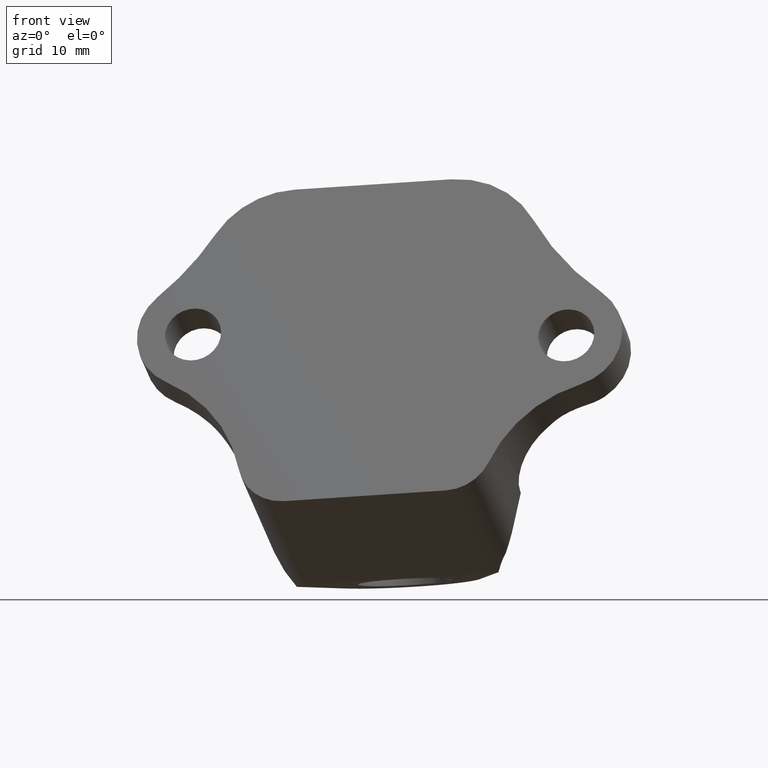
[diagram: clean part render]
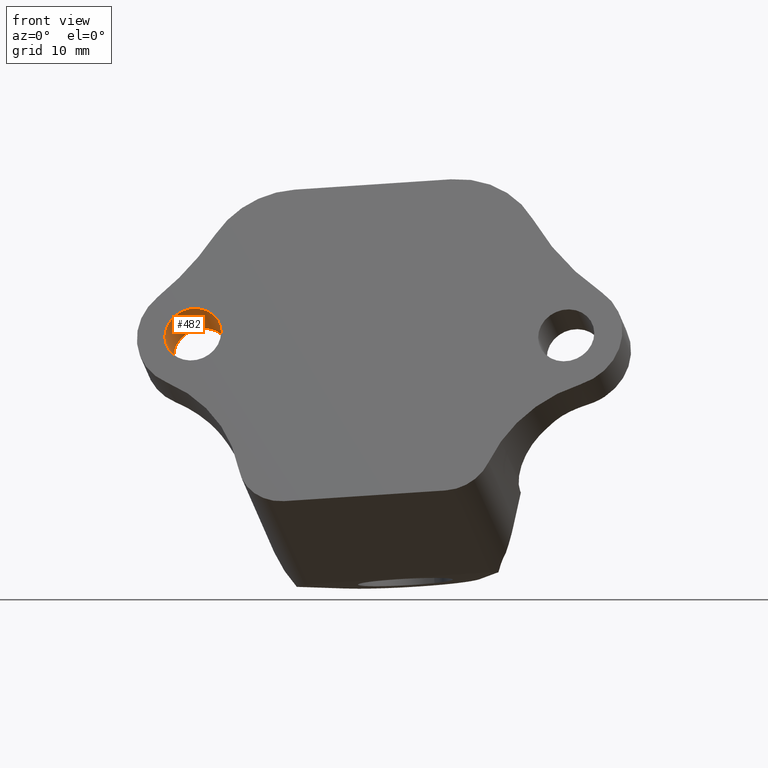
[diagram: same view with one face highlighted and labeled with its STEP entity id]
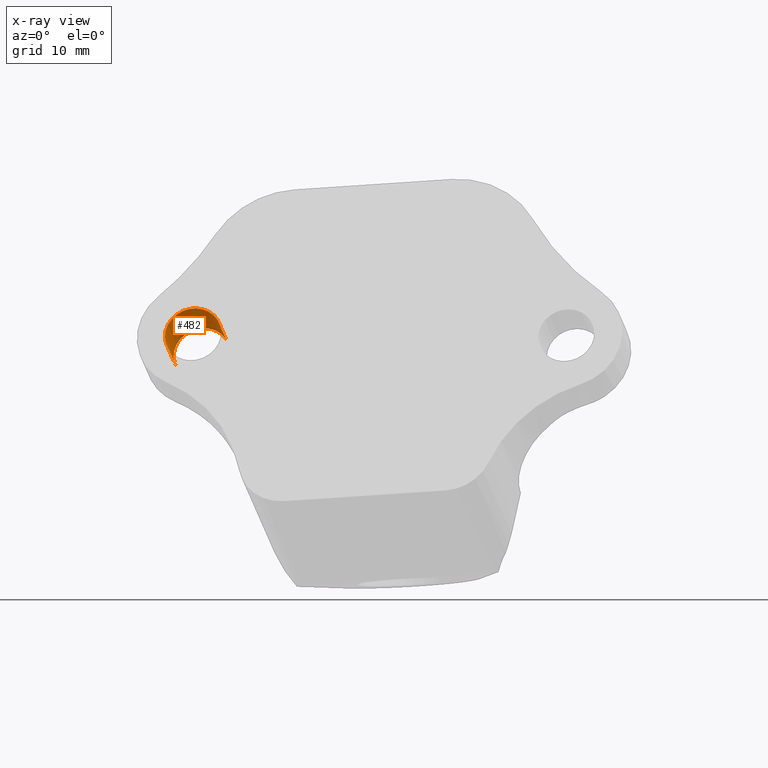
[diagram: x-ray of the same camera — body ghosted, the highlighted face saturated]
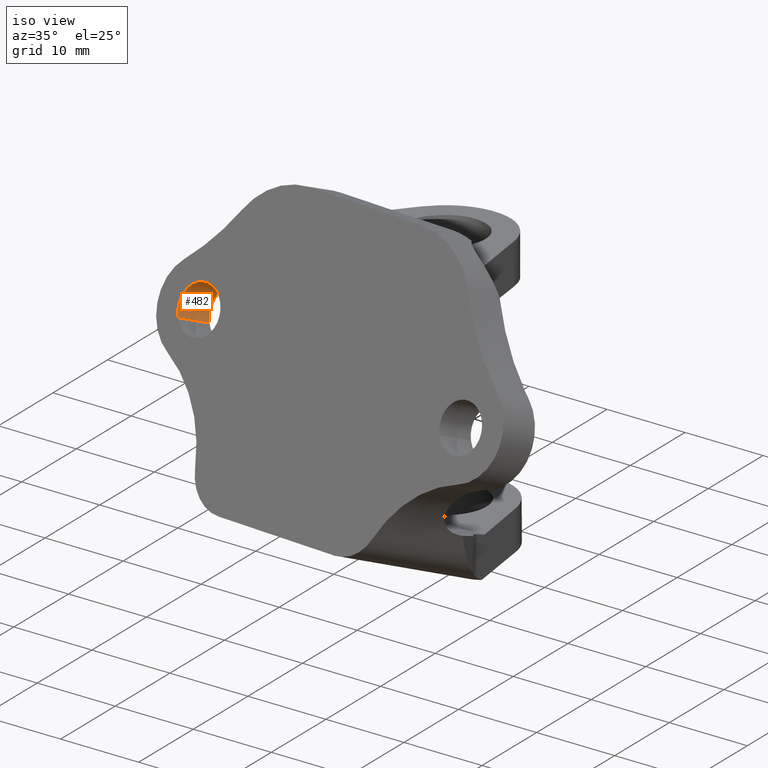
[diagram: same view with one face highlighted and labeled with its STEP entity id]
A machine part, front view. The second image highlights one B-rep face of the part: STEP entity #482.
The next image is the same camera in x-ray: the body ghosted, the highlighted face saturated — about 0% of this face is hidden behind the body in this view.
A second angle (iso view) of the same face is appended — the face is thin or edge-on in the first view.
In plain terms, the highlighted cylindrical surface (edge-blend (fillet) strip) has radius 3 mm, axis along (-0.1825, -0.8911, 0.4155).
Its self-contained STEP definition (entity closure, byte-faithful):
#443=CARTESIAN_POINT('Axis2P3D Location',(1295.91503167,271.099511205,163.856998367)) ;
#448=CARTESIAN_POINT('Line Origine',(1301.15900263,284.236280581,159.317927994)) ;
#452=CARTESIAN_POINT('Vertex',(1297.6092294,266.90560169,167.399711597)) ;
#454=CARTESIAN_POINT('Vertex',(1298.52180846,271.360989008,165.322039026)) ;
#457=CARTESIAN_POINT('Axis2P3D Location',(1295.02070419,266.733231634,165.893117486)) ;
#461=CARTESIAN_POINT('Vertex',(1292.43217898,266.560861578,164.386523376)) ;
#464=CARTESIAN_POINT('Line Origine',(1295.98195221,283.891540469,156.304739773)) ;
#468=CARTESIAN_POINT('Vertex',(1293.34475804,271.016248896,162.308850805)) ;
#471=CARTESIAN_POINT('Axis2P3D Location',(1295.93328325,271.188618952,163.815444915)) ;
#444=DIRECTION('Axis2P3D Direction',(-0.182515811719,-0.891077463515,0.415534514196)) ;
#445=DIRECTION('Axis2P3D XDirection',(0.862841735864,0.0574566853499,0.502198036795)) ;
#449=DIRECTION('Vector Direction',(-0.182515811719,-0.891077463515,0.415534514196)) ;
#458=DIRECTION('Axis2P3D Direction',(-0.182515811719,-0.891077463515,0.415534514196)) ;
#465=DIRECTION('Vector Direction',(-0.182515811719,-0.891077463515,0.415534514196)) ;
#472=DIRECTION('Axis2P3D Direction',(-0.182515811719,-0.891077463515,0.415534514196)) ;
#446=AXIS2_PLACEMENT_3D('Cylinder Axis2P3D',#443,#444,#445) ;
#459=AXIS2_PLACEMENT_3D('Circle Axis2P3D',#457,#458,$) ;
#473=AXIS2_PLACEMENT_3D('Circle Axis2P3D',#471,#472,$) ;
#477=ORIENTED_EDGE('',*,*,#456,.F.) ;
#478=ORIENTED_EDGE('',*,*,#463,.F.) ;
#479=ORIENTED_EDGE('',*,*,#470,.T.) ;
#480=ORIENTED_EDGE('',*,*,#475,.F.) ;
#450=VECTOR('Line Direction',#449,1.) ;
#466=VECTOR('Line Direction',#465,1.) ;
#482=ADVANCED_FACE('Hauptk\X2\00F6\X0\rper',(#481),#447,.F.) ;
#460=CIRCLE('generated circle',#459,3.) ;
#474=CIRCLE('generated circle',#473,3.) ;
#447=CYLINDRICAL_SURFACE('generated cylinder',#446,3.) ;
#456=EDGE_CURVE('',#453,#455,#451,.F.) ;
#463=EDGE_CURVE('',#462,#453,#460,.F.) ;
#470=EDGE_CURVE('',#462,#469,#467,.F.) ;
#475=EDGE_CURVE('',#455,#469,#474,.T.) ;
#476=EDGE_LOOP('',(#477,#478,#479,#480)) ;
#481=FACE_OUTER_BOUND('',#476,.T.) ;
#451=LINE('Line',#448,#450) ;
#467=LINE('Line',#464,#466) ;
#453=VERTEX_POINT('',#452) ;
#455=VERTEX_POINT('',#454) ;
#462=VERTEX_POINT('',#461) ;
#469=VERTEX_POINT('',#468) ;